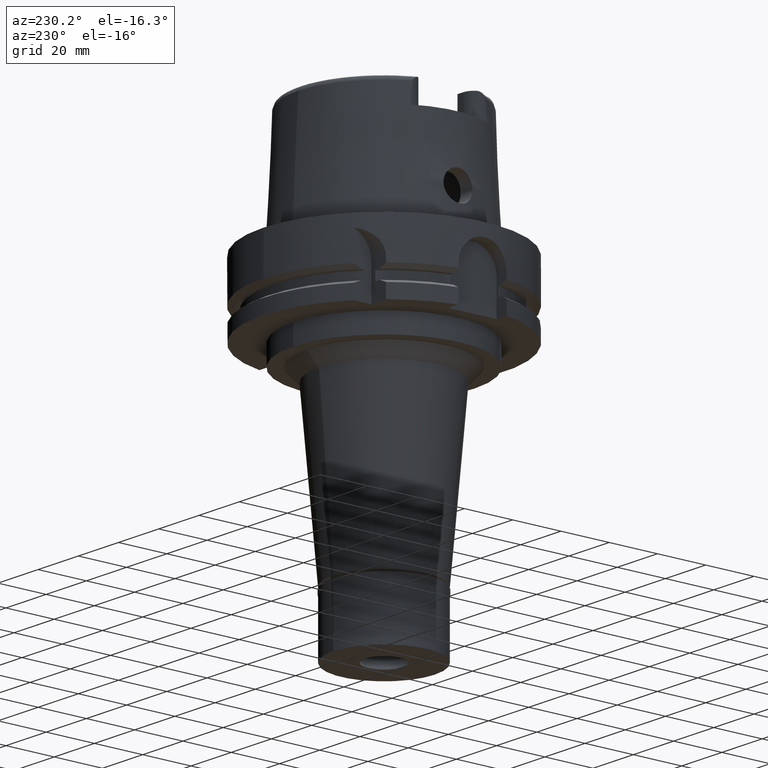
[diagram: clean part render]
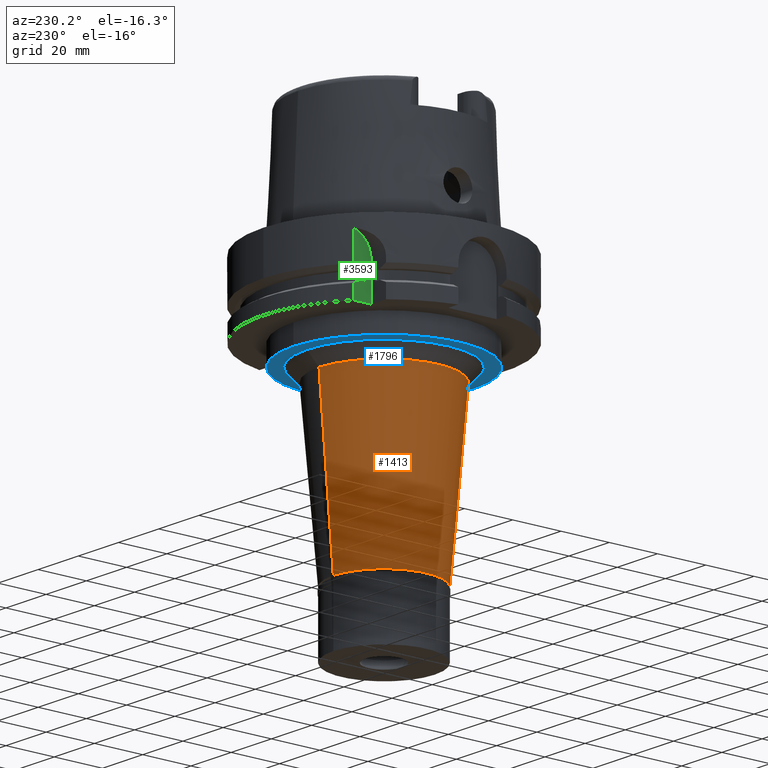
[diagram: same view with three faces highlighted in distinct colors, each labeled with its STEP entity id]
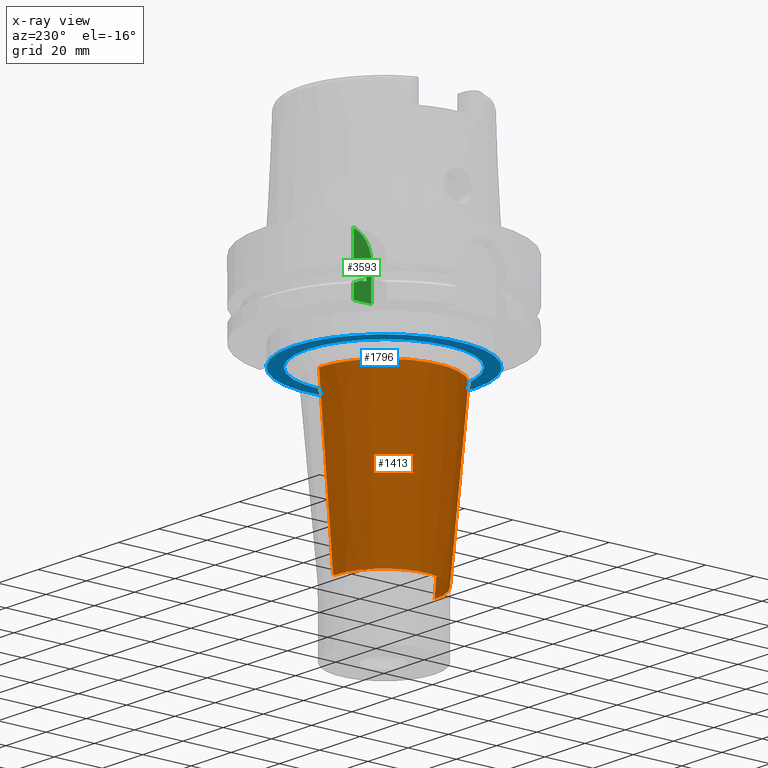
[diagram: x-ray of the same camera — body ghosted, the three highlighted faces saturated]
A machine part, auxiliary view with three faces highlighted in distinct colors.
The next image is the same camera in x-ray (body ghosted, the three faces saturated) — at least one of them is partly hidden behind the body in this view.
Their STEP definitions:

[orange] entity #1413 — the highlighted conical surface has half-angle 5 deg.
#398 = ORIENTED_EDGE ( 'NONE', *, *, #3308, .T. ) ;
#526 = CARTESIAN_POINT ( 'NONE',  ( 0.0000000000000000000, 26.94048025340999786, -42.00000000000000000 ) ) ;
#798 = DIRECTION ( 'NONE',  ( 0.0000000000000000000, 0.0000000000000000000, -1.000000000000000000 ) ) ;
#861 = EDGE_LOOP ( 'NONE', ( #5233, #5573, #398, #1566 ) ) ;
#1112 = VECTOR ( 'NONE', #3696, 1000.000000000000114 ) ;
#1325 = CIRCLE ( 'NONE', #4475, 21.00000000000000000 ) ;
#1413 = ADVANCED_FACE ( 'NONE', ( #4889 ), #1936, .T. ) ;
#1470 = LINE ( 'NONE', #4990, #1112 ) ;
#1512 = EDGE_CURVE ( 'NONE', #2336, #4222, #1470, .T. ) ;
#1566 = ORIENTED_EDGE ( 'NONE', *, *, #4582, .T. ) ;
#1584 = CIRCLE ( 'NONE', #5304, 26.94048025340999786 ) ;
#1803 = CARTESIAN_POINT ( 'NONE',  ( 0.0000000000000000000, 21.00000000000000000, -109.8999999999999915 ) ) ;
#1823 = VECTOR ( 'NONE', #5318, 1000.000000000000114 ) ;
#1936 = CONICAL_SURFACE ( 'NONE', #4556, 23.97024012670999937, 0.08726646259969973729 ) ;
#1941 = DIRECTION ( 'NONE',  ( 0.0000000000000000000, 0.0000000000000000000, 1.000000000000000000 ) ) ;
#2155 = VERTEX_POINT ( 'NONE', #3802 ) ;
#2258 = LINE ( 'NONE', #526, #1823 ) ;
#2336 = VERTEX_POINT ( 'NONE', #4883 ) ;
#3178 = EDGE_CURVE ( 'NONE', #3429, #4222, #1325, .T. ) ;
#3262 = CARTESIAN_POINT ( 'NONE',  ( 0.0000000000000000000, -21.00000000000000000, -109.8999999999999915 ) ) ;
#3308 = EDGE_CURVE ( 'NONE', #2336, #2155, #1584, .T. ) ;
#3394 = CARTESIAN_POINT ( 'NONE',  ( 0.0000000000000000000, 0.0000000000000000000, -42.00000000000000000 ) ) ;
#3429 = VERTEX_POINT ( 'NONE', #1803 ) ;
#3637 = DIRECTION ( 'NONE',  ( 0.0000000000000000000, 1.000000000000000000, 0.0000000000000000000 ) ) ;
#3696 = DIRECTION ( 'NONE',  ( 0.0000000000000000000, 0.08715574274764407992, -0.9961946980917467664 ) ) ;
#3802 = CARTESIAN_POINT ( 'NONE',  ( 0.0000000000000000000, 26.94048025340999786, -42.00000000000000000 ) ) ;
#4034 = CARTESIAN_POINT ( 'NONE',  ( 0.0000000000000000000, 0.0000000000000000000, -75.95000000000000284 ) ) ;
#4222 = VERTEX_POINT ( 'NONE', #3262 ) ;
#4457 = DIRECTION ( 'NONE',  ( 0.0000000000000000000, 1.000000000000000000, 0.0000000000000000000 ) ) ;
#4475 = AXIS2_PLACEMENT_3D ( 'NONE', #4610, #5381, #3637 ) ;
#4556 = AXIS2_PLACEMENT_3D ( 'NONE', #4034, #1941, #4457 ) ;
#4582 = EDGE_CURVE ( 'NONE', #2155, #3429, #2258, .T. ) ;
#4610 = CARTESIAN_POINT ( 'NONE',  ( 0.0000000000000000000, 0.0000000000000000000, -109.8999999999999915 ) ) ;
#4639 = DIRECTION ( 'NONE',  ( 0.0000000000000000000, -1.000000000000000000, 0.0000000000000000000 ) ) ;
#4883 = CARTESIAN_POINT ( 'NONE',  ( 0.0000000000000000000, -26.94048025340999786, -42.00000000000000000 ) ) ;
#4889 = FACE_OUTER_BOUND ( 'NONE', #861, .T. ) ;
#4990 = CARTESIAN_POINT ( 'NONE',  ( 0.0000000000000000000, -26.94048025340999786, -42.00000000000000000 ) ) ;
#5233 = ORIENTED_EDGE ( 'NONE', *, *, #3178, .T. ) ;
#5304 = AXIS2_PLACEMENT_3D ( 'NONE', #3394, #798, #4639 ) ;
#5318 = DIRECTION ( 'NONE',  ( 0.0000000000000000000, -0.08715574274764407992, -0.9961946980917467664 ) ) ;
#5381 = DIRECTION ( 'NONE',  ( 0.0000000000000000000, 0.0000000000000000000, 1.000000000000000000 ) ) ;
#5573 = ORIENTED_EDGE ( 'NONE', *, *, #1512, .F. ) ;

[blue] entity #1796 — the highlighted planar face has unit normal (0, 0, 1).
#574 = DIRECTION ( 'NONE',  ( 0.0000000000000000000, 1.000000000000000000, 0.0000000000000000000 ) ) ;
#599 = DIRECTION ( 'NONE',  ( 0.0000000000000000000, -1.000000000000000000, 0.0000000000000000000 ) ) ;
#644 = CIRCLE ( 'NONE', #4906, 31.94048025341000141 ) ;
#1045 = ORIENTED_EDGE ( 'NONE', *, *, #3357, .F. ) ;
#1660 = AXIS2_PLACEMENT_3D ( 'NONE', #1858, #2305, #4488 ) ;
#1663 = CIRCLE ( 'NONE', #1928, 37.50000000000000000 ) ;
#1719 = EDGE_CURVE ( 'NONE', #4587, #4467, #2470, .T. ) ;
#1773 = CARTESIAN_POINT ( 'NONE',  ( 0.0000000000000000000, 0.0000000000000000000, -37.00000000000000000 ) ) ;
#1791 = CARTESIAN_POINT ( 'NONE',  ( 0.0000000000000000000, 37.50000000000000000, -37.00000000000000000 ) ) ;
#1794 = CARTESIAN_POINT ( 'NONE',  ( 0.0000000000000000000, 0.0000000000000000000, -37.00000000000000000 ) ) ;
#1795 = EDGE_LOOP ( 'NONE', ( #1045, #2434 ) ) ;
#1796 = ADVANCED_FACE ( 'NONE', ( #4019, #1864 ), #4955, .F. ) ;
#1852 = CIRCLE ( 'NONE', #5031, 37.50000000000000000 ) ;
#1858 = CARTESIAN_POINT ( 'NONE',  ( 0.0000000000000000000, 0.0000000000000000000, -37.00000000000000000 ) ) ;
#1864 = FACE_BOUND ( 'NONE', #2072, .T. ) ;
#1928 = AXIS2_PLACEMENT_3D ( 'NONE', #1773, #3499, #4292 ) ;
#2072 = EDGE_LOOP ( 'NONE', ( #5471, #4931 ) ) ;
#2252 = EDGE_CURVE ( 'NONE', #4122, #5409, #1663, .T. ) ;
#2289 = DIRECTION ( 'NONE',  ( 0.0000000000000000000, 0.0000000000000000000, -1.000000000000000000 ) ) ;
#2305 = DIRECTION ( 'NONE',  ( 0.0000000000000000000, 0.0000000000000000000, 1.000000000000000000 ) ) ;
#2434 = ORIENTED_EDGE ( 'NONE', *, *, #2252, .F. ) ;
#2470 = CIRCLE ( 'NONE', #3377, 31.94048025341000141 ) ;
#2505 = DIRECTION ( 'NONE',  ( 0.0000000000000000000, 1.000000000000000000, 0.0000000000000000000 ) ) ;
#3326 = DIRECTION ( 'NONE',  ( 0.0000000000000000000, 0.0000000000000000000, 1.000000000000000000 ) ) ;
#3357 = EDGE_CURVE ( 'NONE', #5409, #4122, #1852, .T. ) ;
#3377 = AXIS2_PLACEMENT_3D ( 'NONE', #3587, #4469, #599 ) ;
#3499 = DIRECTION ( 'NONE',  ( 0.0000000000000000000, 0.0000000000000000000, 1.000000000000000000 ) ) ;
#3519 = CARTESIAN_POINT ( 'NONE',  ( 0.0000000000000000000, -31.94048025341000141, -37.00000000000000000 ) ) ;
#3582 = CARTESIAN_POINT ( 'NONE',  ( 0.0000000000000000000, -37.50000000000000000, -37.00000000000000000 ) ) ;
#3587 = CARTESIAN_POINT ( 'NONE',  ( 0.0000000000000000000, 0.0000000000000000000, -37.00000000000000000 ) ) ;
#4019 = FACE_OUTER_BOUND ( 'NONE', #1795, .T. ) ;
#4122 = VERTEX_POINT ( 'NONE', #3582 ) ;
#4161 = CARTESIAN_POINT ( 'NONE',  ( 0.0000000000000000000, 31.94048025341000141, -37.00000000000000000 ) ) ;
#4292 = DIRECTION ( 'NONE',  ( 0.0000000000000000000, -1.000000000000000000, 0.0000000000000000000 ) ) ;
#4467 = VERTEX_POINT ( 'NONE', #4161 ) ;
#4469 = DIRECTION ( 'NONE',  ( 0.0000000000000000000, 0.0000000000000000000, -1.000000000000000000 ) ) ;
#4488 = DIRECTION ( 'NONE',  ( 1.000000000000000000, 0.0000000000000000000, 0.0000000000000000000 ) ) ;
#4575 = EDGE_CURVE ( 'NONE', #4467, #4587, #644, .T. ) ;
#4587 = VERTEX_POINT ( 'NONE', #3519 ) ;
#4906 = AXIS2_PLACEMENT_3D ( 'NONE', #1794, #2289, #574 ) ;
#4931 = ORIENTED_EDGE ( 'NONE', *, *, #1719, .F. ) ;
#4955 = PLANE ( 'NONE',  #1660 ) ;
#5031 = AXIS2_PLACEMENT_3D ( 'NONE', #5130, #3326, #2505 ) ;
#5130 = CARTESIAN_POINT ( 'NONE',  ( 0.0000000000000000000, 0.0000000000000000000, -37.00000000000000000 ) ) ;
#5409 = VERTEX_POINT ( 'NONE', #1791 ) ;
#5471 = ORIENTED_EDGE ( 'NONE', *, *, #4575, .F. ) ;

[green] entity #3593 — the highlighted planar face has unit normal (1, 0, 0).
#69 = AXIS2_PLACEMENT_3D ( 'NONE', #281, #4107, #1617 ) ;
#77 = ORIENTED_EDGE ( 'NONE', *, *, #3943, .F. ) ;
#151 = CARTESIAN_POINT ( 'NONE',  ( -31.50000355958999876, 38.82975374304999860, -16.75239179145000179 ) ) ;
#203 = LINE ( 'NONE', #920, #577 ) ;
#226 = CARTESIAN_POINT ( 'NONE',  ( -31.50000000000000000, 33.52238058372000040, -18.12500000000000000 ) ) ;
#281 = CARTESIAN_POINT ( 'NONE',  ( -31.50000000000000000, 0.0000000000000000000, 0.0000000000000000000 ) ) ;
#298 = EDGE_CURVE ( 'NONE', #2646, #2621, #794, .T. ) ;
#351 = VERTEX_POINT ( 'NONE', #1238 ) ;
#353 = DIRECTION ( 'NONE',  ( 4.798503851105999980E-14, 1.000000000000000000, 0.0000000000000000000 ) ) ;
#534 = CARTESIAN_POINT ( 'NONE',  ( -31.50000097280999967, 35.71639618471999711, -18.12500000000000000 ) ) ;
#577 = VECTOR ( 'NONE', #1288, 1000.000000000000114 ) ;
#671 = VECTOR ( 'NONE', #3685, 1000.000000000000000 ) ;
#722 = CARTESIAN_POINT ( 'NONE',  ( -31.50000000000000000, 31.50000000000000000, -14.63689785921000031 ) ) ;
#793 = LINE ( 'NONE', #1089, #671 ) ;
#794 = LINE ( 'NONE', #4754, #2545 ) ;
#815 = CARTESIAN_POINT ( 'NONE',  ( -31.50000355985999789, 38.82975374283000036, -23.24760820811999906 ) ) ;
#873 = DIRECTION ( 'NONE',  ( -4.434271693799003071E-07, 0.9999999999999016342, -9.229865077722006851E-14 ) ) ;
#880 = EDGE_CURVE ( 'NONE', #1229, #2646, #3725, .T. ) ;
#920 = CARTESIAN_POINT ( 'NONE',  ( -31.50000000000000000, 38.82975663071000128, -5.000000000003000267 ) ) ;
#960 = CARTESIAN_POINT ( 'NONE',  ( -31.50000000000000000, 41.50000000000000000, -14.63689785921000031 ) ) ;
#1089 = CARTESIAN_POINT ( 'NONE',  ( -31.50000355985999789, 38.82975374283000036, -23.24760820811999906 ) ) ;
#1124 = VECTOR ( 'NONE', #3811, 1000.000000000000000 ) ;
#1229 = VERTEX_POINT ( 'NONE', #5435 ) ;
#1238 = CARTESIAN_POINT ( 'NONE',  ( -31.50000355985999789, 38.82975374283000036, -23.24760820811999906 ) ) ;
#1255 = EDGE_CURVE ( 'NONE', #3786, #3574, #1545, .T. ) ;
#1288 = DIRECTION ( 'NONE',  ( -3.028823767049074487E-07, -2.457085509676059455E-07, -0.9999999999999239497 ) ) ;
#1421 = B_SPLINE_CURVE_WITH_KNOTS ( 'NONE', 3,
 ( #534, #3154, #3979, #151 ),
 .UNSPECIFIED., .F., .F.,
 ( 4, 4 ),
 ( 0.0000000000000000000, 1.000000000000000000 ),
 .UNSPECIFIED. ) ;
#1457 = EDGE_CURVE ( 'NONE', #5384, #4018, #1421, .T. ) ;
#1545 = LINE ( 'NONE', #3268, #1124 ) ;
#1603 = LINE ( 'NONE', #2924, #3277 ) ;
#1617 = DIRECTION ( 'NONE',  ( 0.0000000000000000000, 1.000000000000000000, 0.0000000000000000000 ) ) ;
#1637 = CIRCLE ( 'NONE', #2354, 9.999999999999996447 ) ;
#1730 = CARTESIAN_POINT ( 'NONE',  ( -31.50000097280999967, 35.71639618471999711, -18.12500000000000000 ) ) ;
#1734 = VECTOR ( 'NONE', #5486, 1000.000000000000227 ) ;
#1848 = EDGE_CURVE ( 'NONE', #2627, #4018, #203, .T. ) ;
#1890 = CARTESIAN_POINT ( 'NONE',  ( -31.50000355958999876, 38.82975374304999860, -16.75239179145000179 ) ) ;
#1903 = EDGE_CURVE ( 'NONE', #351, #5498, #793, .T. ) ;
#2010 = EDGE_CURVE ( 'NONE', #3786, #5498, #1603, .T. ) ;
#2012 = CARTESIAN_POINT ( 'NONE',  ( -31.50000000000000000, 38.82975663071000128, -5.000000000003000267 ) ) ;
#2239 = DIRECTION ( 'NONE',  ( 1.000000000000000000, 0.0000000000000000000, 0.0000000000000000000 ) ) ;
#2334 = ORIENTED_EDGE ( 'NONE', *, *, #3887, .F. ) ;
#2354 = AXIS2_PLACEMENT_3D ( 'NONE', #960, #2239, #3974 ) ;
#2545 = VECTOR ( 'NONE', #873, 1000.000000000000000 ) ;
#2621 = VERTEX_POINT ( 'NONE', #5505 ) ;
#2627 = VERTEX_POINT ( 'NONE', #2012 ) ;
#2646 = VERTEX_POINT ( 'NONE', #3737 ) ;
#2924 = CARTESIAN_POINT ( 'NONE',  ( -31.50000000000000000, 31.50000000000000000, -29.00000000000000000 ) ) ;
#3154 = CARTESIAN_POINT ( 'NONE',  ( -31.50000195460757979, 36.73337253298934257, -17.68464608511978042 ) ) ;
#3252 = FACE_OUTER_BOUND ( 'NONE', #5046, .T. ) ;
#3268 = CARTESIAN_POINT ( 'NONE',  ( -31.50000000000000000, 31.50000000000000000, -29.00000000000000000 ) ) ;
#3277 = VECTOR ( 'NONE', #353, 1000.000000000000000 ) ;
#3321 = ORIENTED_EDGE ( 'NONE', *, *, #1848, .T. ) ;
#3574 = VERTEX_POINT ( 'NONE', #722 ) ;
#3590 = CARTESIAN_POINT ( 'NONE',  ( -31.50000000000000000, 38.82975663071000128, -29.00000000000000000 ) ) ;
#3593 = ADVANCED_FACE ( 'NONE', ( #3252 ), #5507, .F. ) ;
#3685 = DIRECTION ( 'NONE',  ( 6.188494047474892859E-07, 5.020316378013912240E-07, -0.9999999999996824762 ) ) ;
#3693 = ORIENTED_EDGE ( 'NONE', *, *, #1255, .T. ) ;
#3694 = CARTESIAN_POINT ( 'NONE',  ( -31.50000000000000000, 33.52238058372000040, -18.12500000000000000 ) ) ;
#3725 = LINE ( 'NONE', #3694, #5010 ) ;
#3737 = CARTESIAN_POINT ( 'NONE',  ( -31.50000000000000000, 33.52238058372000040, -21.87500000000000000 ) ) ;
#3786 = VERTEX_POINT ( 'NONE', #4001 ) ;
#3811 = DIRECTION ( 'NONE',  ( 0.0000000000000000000, 0.0000000000000000000, 1.000000000000000000 ) ) ;
#3829 = ORIENTED_EDGE ( 'NONE', *, *, #1903, .T. ) ;
#3887 = EDGE_CURVE ( 'NONE', #2627, #3574, #1637, .T. ) ;
#3943 = EDGE_CURVE ( 'NONE', #1229, #5384, #4080, .T. ) ;
#3954 = B_SPLINE_CURVE_WITH_KNOTS ( 'NONE', 3,
 ( #4720, #4695, #4748, #815 ),
 .UNSPECIFIED., .F., .F.,
 ( 4, 4 ),
 ( 0.0000000000000000000, 1.000000000000000000 ),
 .UNSPECIFIED. ) ;
#3974 = DIRECTION ( 'NONE',  ( 0.0000000000000000000, -0.2670243369289914681, 0.9636897859205691974 ) ) ;
#3979 = CARTESIAN_POINT ( 'NONE',  ( -31.50000711004718212, 37.77100375014965294, -17.22711240004090172 ) ) ;
#4001 = CARTESIAN_POINT ( 'NONE',  ( -31.50000000000000000, 31.50000000000000000, -29.00000000000000000 ) ) ;
#4018 = VERTEX_POINT ( 'NONE', #1890 ) ;
#4080 = LINE ( 'NONE', #226, #1734 ) ;
#4107 = DIRECTION ( 'NONE',  ( 1.000000000000000000, 0.0000000000000000000, 0.0000000000000000000 ) ) ;
#4153 = ORIENTED_EDGE ( 'NONE', *, *, #4516, .T. ) ;
#4230 = ORIENTED_EDGE ( 'NONE', *, *, #1457, .F. ) ;
#4256 = ORIENTED_EDGE ( 'NONE', *, *, #2010, .F. ) ;
#4327 = ORIENTED_EDGE ( 'NONE', *, *, #298, .T. ) ;
#4516 = EDGE_CURVE ( 'NONE', #2621, #351, #3954, .T. ) ;
#4588 = DIRECTION ( 'NONE',  ( 0.0000000000000000000, 0.0000000000000000000, -1.000000000000000000 ) ) ;
#4645 = ORIENTED_EDGE ( 'NONE', *, *, #880, .T. ) ;
#4695 = CARTESIAN_POINT ( 'NONE',  ( -31.50000000000000000, 36.72844978580286579, -22.31322538854309911 ) ) ;
#4720 = CARTESIAN_POINT ( 'NONE',  ( -31.50000097288999967, 35.71639618401999883, -21.87500000000000000 ) ) ;
#4748 = CARTESIAN_POINT ( 'NONE',  ( -31.50000000000000000, 37.76623563873953771, -22.77076145791643569 ) ) ;
#4754 = CARTESIAN_POINT ( 'NONE',  ( -31.50000000000000000, 33.52238058372000040, -21.87500000000000000 ) ) ;
#5010 = VECTOR ( 'NONE', #4588, 1000.000000000000000 ) ;
#5046 = EDGE_LOOP ( 'NONE', ( #3693, #2334, #3321, #4230, #77, #4645, #4327, #4153, #3829, #4256 ) ) ;
#5384 = VERTEX_POINT ( 'NONE', #1730 ) ;
#5435 = CARTESIAN_POINT ( 'NONE',  ( -31.50000000000000000, 33.52238058372000040, -18.12500000000000000 ) ) ;
#5486 = DIRECTION ( 'NONE',  ( -4.433903906541007990E-07, 0.9999999999999016342, 9.391792532212016159E-14 ) ) ;
#5498 = VERTEX_POINT ( 'NONE', #3590 ) ;
#5505 = CARTESIAN_POINT ( 'NONE',  ( -31.50000097288999967, 35.71639618401999883, -21.87500000000000000 ) ) ;
#5507 = PLANE ( 'NONE',  #69 ) ;